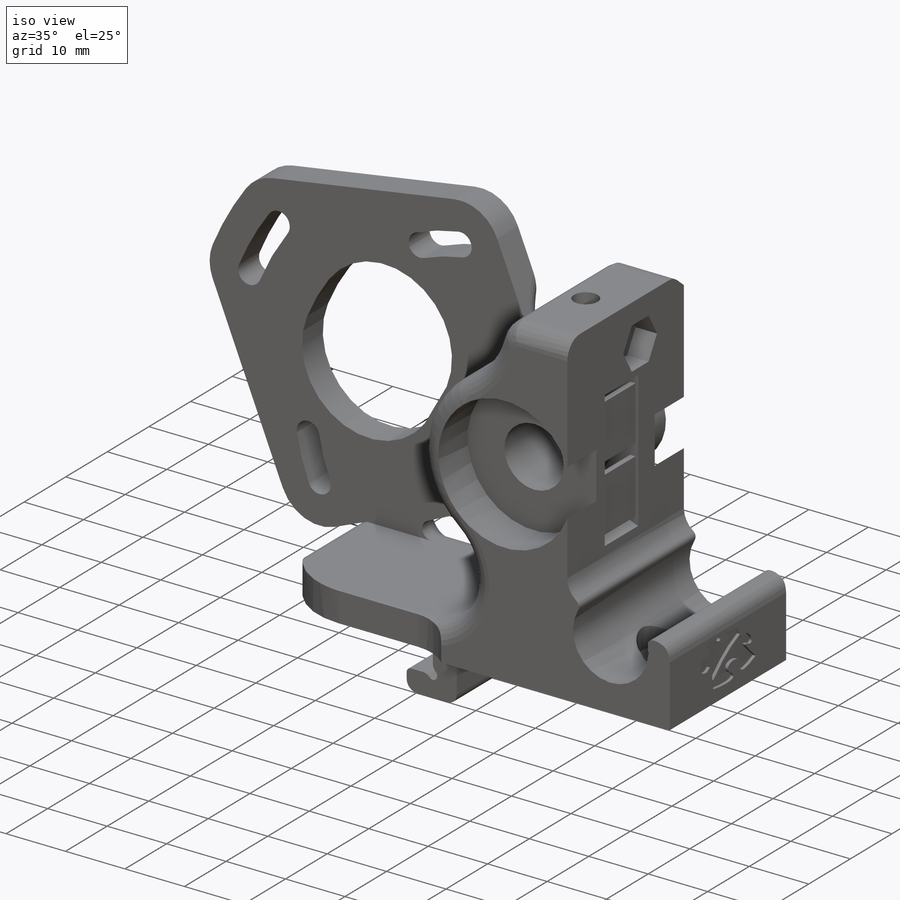
[diagram: iso view]
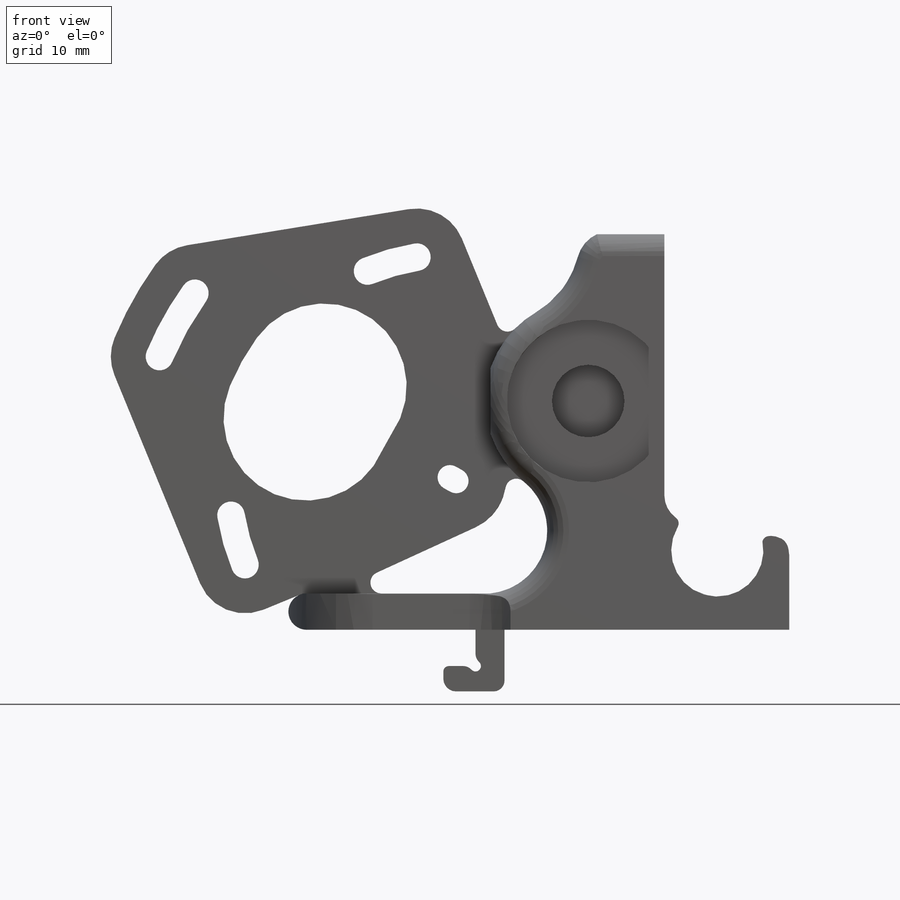
[diagram: front view]
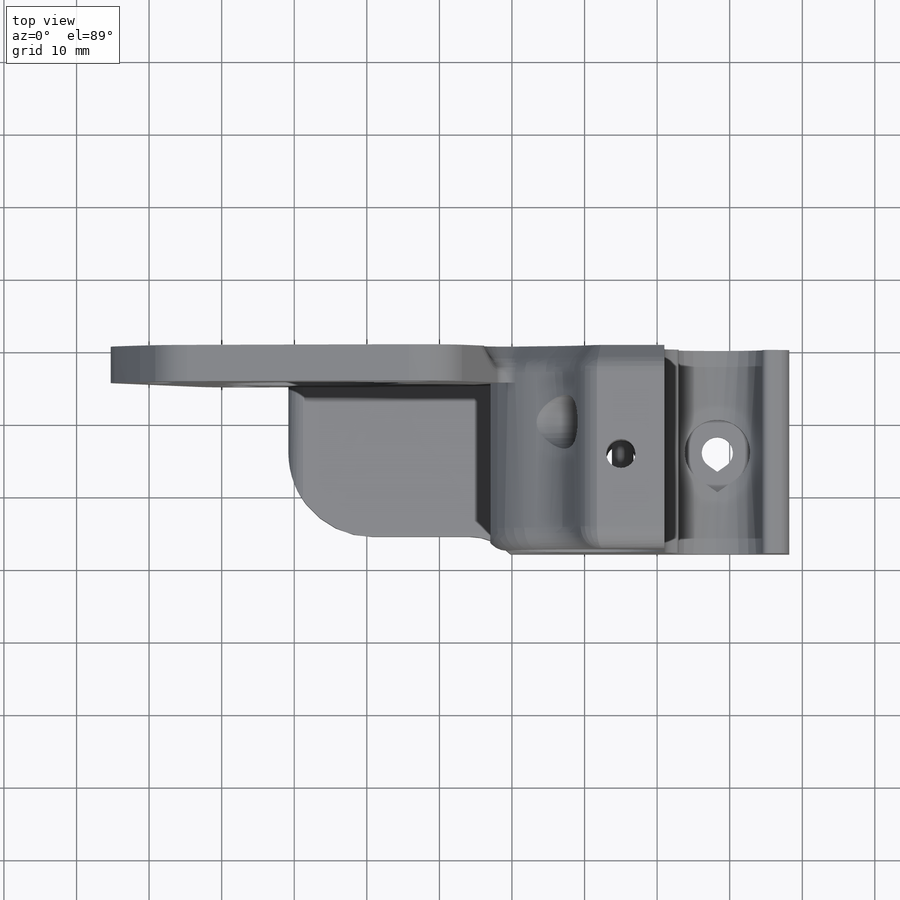
[diagram: top view]
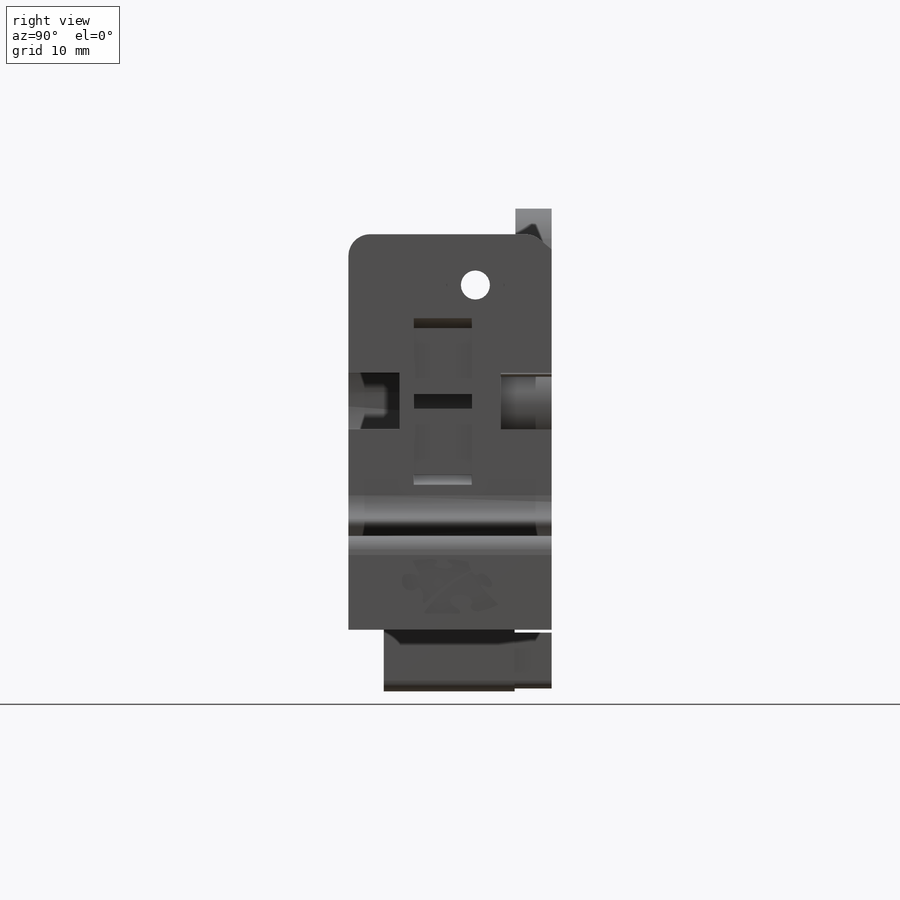
[diagram: right view]
SOLIDWORKS PART (.sldprt)
format: sldprt  version: not decoded by parser v0  size: 1,530,880 bytes
history: native  units: mm
features: sketch x43, cut_extrude x29, extrude x13, fillet x6, plane x4, chamfer x2, material x1, helix x1 (+11 scaffold rows collapsed)
feature tree (110):
  scaffold x11  (default folders/planes/origin — collapsed)
  material  "Material <not specified>"
  plane  "Plane1"  Offset=28mm
  sketch  "Sketch1"
  extrude  "Boss-Extrude1"  Depth=28mm
  sketch  "Sketch2"
  cut_extrude  "Cut-Extrude1"  Depth=23mm
  plane  "Plane4"
  sketch  "Sketch30"  dims[D1=~17.407348mm]
  cut_extrude  "Cut-Extrude9"  Depth=8mm
  sketch  "Sketch78"
  cut_extrude  "Cut-Extrude16"  [1 undecoded]
  sketch  "Sketch72"  dims[D1=~1.973355mm]
  cut_extrude  "Cut-Extrude14"  Depth=20mm
  sketch  "Sketch77"  dims[D1=~15.882964mm]
  cut_extrude  "Cut-Extrude15"  Depth=7mm
  sketch  "Sketch79"  dims[D1=~2.533176mm]
  cut_extrude  "Cut-Extrude17"  Depth=12mm
  sketch  "Sketch84"  dims[D1=~4.947136mm]
  cut_extrude  "Cut-Extrude20"  Depth=7mm
  sketch  "Sketch89"
  cut_extrude  "Cut-Extrude25"  [1 undecoded]
  sketch  "Sketch95"  dims[c1.D7=~10.507198mm c1.D1=0.44mm c1.D2=0.44mm c1.D3=0.44mm c1.D4=0.44mm c1.D5=0.88mm c1.D6=0.88mm c2.D7=0.4mm c2.D3=1.0mm c2.D4=1.0mm c3.D7=1.0mm c3.D8=1.0mm]
  extrude  "Boss-Extrude6"  [1 undecoded]
  sketch  "Sketch98"  dims[D1=0.88mm]
  helix  "Helix/Spiral4"  Pitch=3.5mm
  sketch  "Sketch101"  dims[D1=0.44mm D2=0.44mm]
  extrude  "Boss-Extrude9"  [1 undecoded]
  sketch  "Sketch107"  dims[D1=5.0mm]
  extrude  "Boss-Extrude11"  [1 undecoded]
  sketch  "Sketch110"  dims[c1.D1=~2.835253mm c2.D1=35.0deg]
  cut_extrude  "Cut-Extrude27"  [1 undecoded]
  sketch  "Sketch111"  dims[c1.D1=4.0mm c1.D2=~3.458727mm c2.D1=~3.92314mm c3.D1=0.0deg]
  cut_extrude  "Cut-Extrude28"  Depth=3.6mm
  sketch  "Sketch115"
  extrude  "Boss-Extrude12"  [1 undecoded]
  sketch  "Sketch113"  dims[c1.D1=3.4mm c1.D2=~84.281241mm c1.D3=~91.081241mm c1.D4=~1.036935mm c2.D1=10.0mm c2.D4=~6.970283mm]
  cut_extrude  "Cut-Extrude30"  Depth=10mm
  sketch  "Sketch117"  dims[c1.D1=~14.00581mm c2.D1=0.0deg]
  cut_extrude  "Cut-Extrude31"  Depth=10mm
  sketch  "Sketch118"
  cut_extrude  "Cut-Extrude32"  [1 undecoded]
  sketch  "Sketch120"  dims[D1=3.0mm]
  cut_extrude  "Cut-Extrude33"  [1 undecoded]
  sketch  "Sketch134"  dims[D1=0.0mm]
  extrude  "Boss-Extrude14"  Depth=3mm
  sketch  "Sketch121"  dims[D1=~13.502514mm]
  cut_extrude  "Cut-Extrude34"  [1 undecoded]
  fillet  "Fillet10"  Radius=3mm
  sketch  "Sketch123"  dims[c1.D2=~26.281142mm c2.D2=0.0deg c2.D1=5.2mm c3.D2=5.2mm]
  cut_extrude  "Cut-Extrude35"  [1 undecoded]
  sketch  "Sketch125"  dims[c1.D1=~23.127102mm c2.D1=0.0deg c2.D2=0.0mm]
  cut_extrude  "Cut-Extrude38"  [1 undecoded]
  fillet  "Fillet12"  Radius=1.5mm
  fillet  "Fillet13"  Radius=1.5mm
  sketch  "Sketch126"  dims[D1=0.2mm]
  cut_extrude  "Cut-Extrude39"  [1 undecoded]
  chamfer  "Chamfer4"  Distance=2.5mm Angle=40deg
  fillet  "Fillet15"  Radius=3mm
  chamfer  "Chamfer7"  Distance=2.5mm Angle=35deg
  fillet  "Fillet18"  Radius=3mm
  sketch  "Sketch127"  dims[c1.D1=0.0mm c1.D2=0.3mm c2.D1=0.5mm]
  extrude  "Boss-Extrude13"  [1 undecoded]
  sketch  "Sketch129"  dims[D1=0.2mm]
  cut_extrude  "Cut-Extrude40"  [1 undecoded]
  sketch  "Sketch133"  dims[D1=~3.659515mm]
  cut_extrude  "Cut-Extrude41"  [1 undecoded]
  sketch  "Sketch135"  dims[D1=~5.426385mm]
  cut_extrude  "Cut-Extrude42"  [1 undecoded]
  sketch  "Sketch139"  dims[D1=0.0mm]
  extrude  "Boss-Extrude16"  [1 undecoded]
  sketch  "Sketch140"
  cut_extrude  "Cut-Extrude44"  [1 undecoded]
  sketch  "Sketch141"
  extrude  "Boss-Extrude17"  [1 undecoded]
  sketch  "Sketch142"
  extrude  "Boss-Extrude18"  [1 undecoded]
  sketch  "Sketch145"
  cut_extrude  "Cut-Extrude46"  Depth=0.5mm
  sketch  "Sketch150"  dims[D1=0.0mm]
  extrude  "Boss-Extrude20"  Depth=1.5mm
  fillet  "Fillet20"  Radius=3mm
  sketch  "Sketch154"  dims[D1=1.0mm]
  cut_extrude  "Cut-Extrude49"  Depth=0.68mm
  sketch  "Sketch157"
  cut_extrude  "Cut-Extrude50"  [1 undecoded]
  plane  "Plane6"  Offset=3mm
  sketch  "Sketch158"  dims[c1.D1=9.0mm c1.D2=9.0mm c2.D1=~4.59171mm c3.D1=35.0deg]
  cut_extrude  "Cut-Extrude51"  Depth=10mm
  sketch  "Sketch160"  dims[c1.D1=4.3mm c1.D2=~2.290451mm c2.D2=35.0deg]
  cut_extrude  "Cut-Extrude52"  [1 undecoded]
  sketch  "Sketch167"  dims[D1=0.75mm]
  cut_extrude  "Cut-Extrude60"  Depth=10mm
  plane  "Plane7"  Offset=5.1mm
  sketch  "Sketch173"  dims[c1.D3=1.0mm c1.D1=5.0mm c1.D2=4.0mm c2.D1=4.0mm c2.D2=3.5mm]
  extrude  "Boss-Extrude21"  Depth=18.02mm
  sketch  "Sketch174"  dims[D1=0.0mm D2=0.3978mm D3=0.7956mm]
  extrude  "Boss-Extrude22"  [1 undecoded]
  sketch  "Sketch176"  dims[c1.D1=1.7mm c1.D2=1.7mm c2.D1=0.5mm c2.D2=0.5mm]
  cut_extrude  "Cut-Extrude62"  [1 undecoded]
decode coverage: 58 of 94 modeling features carry decoded parameters
note: ~ marks probable driven/reference dimensions
note: 25 parameter values undecoded
summary: no parameter record found for 25 features
note: suppression state not decoded; provenance and decode notes live in map.json
